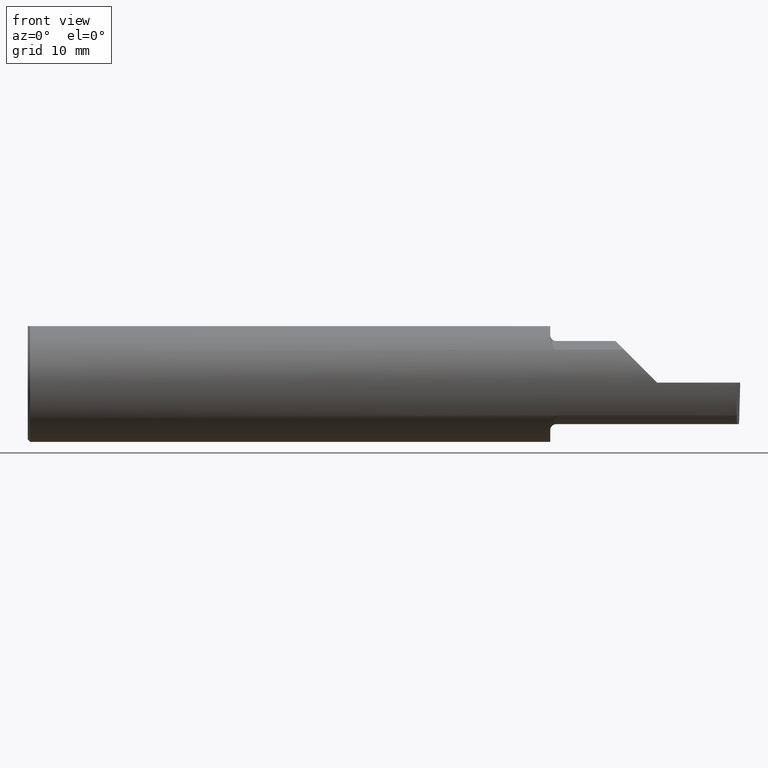
[diagram: clean part render]
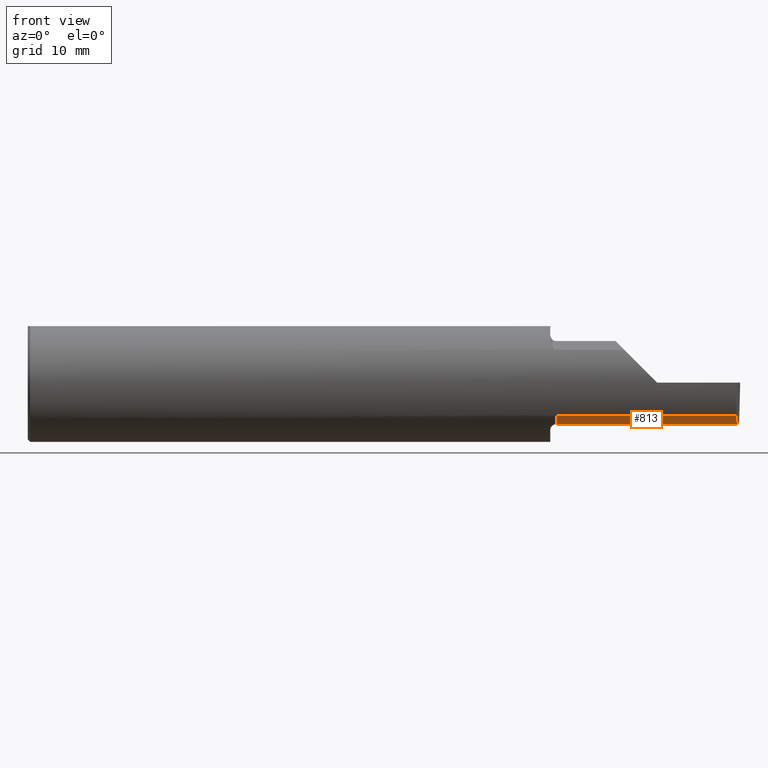
[diagram: same view with one face highlighted and labeled with its STEP entity id]
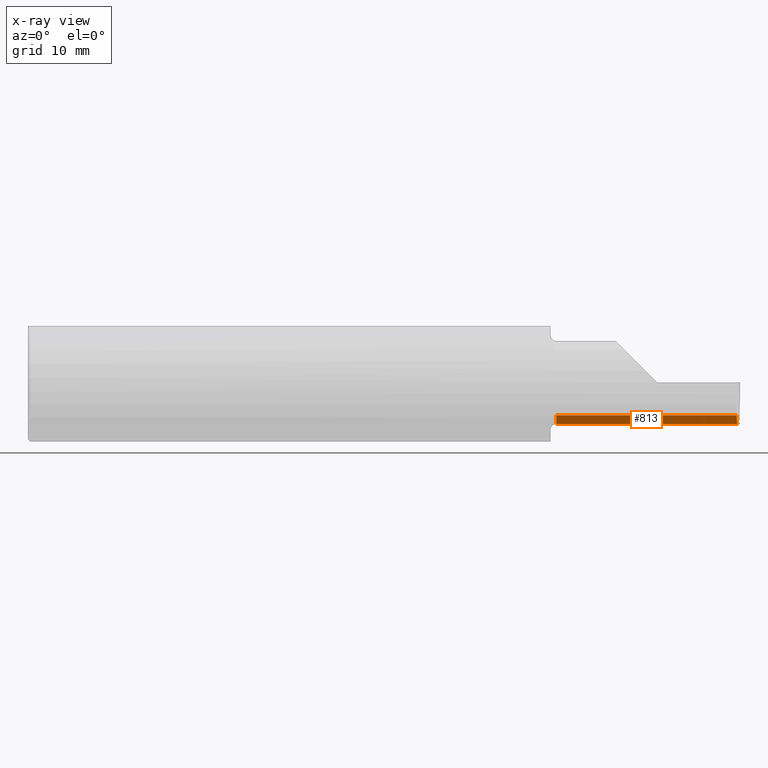
[diagram: x-ray of the same camera — body ghosted, the highlighted face saturated]
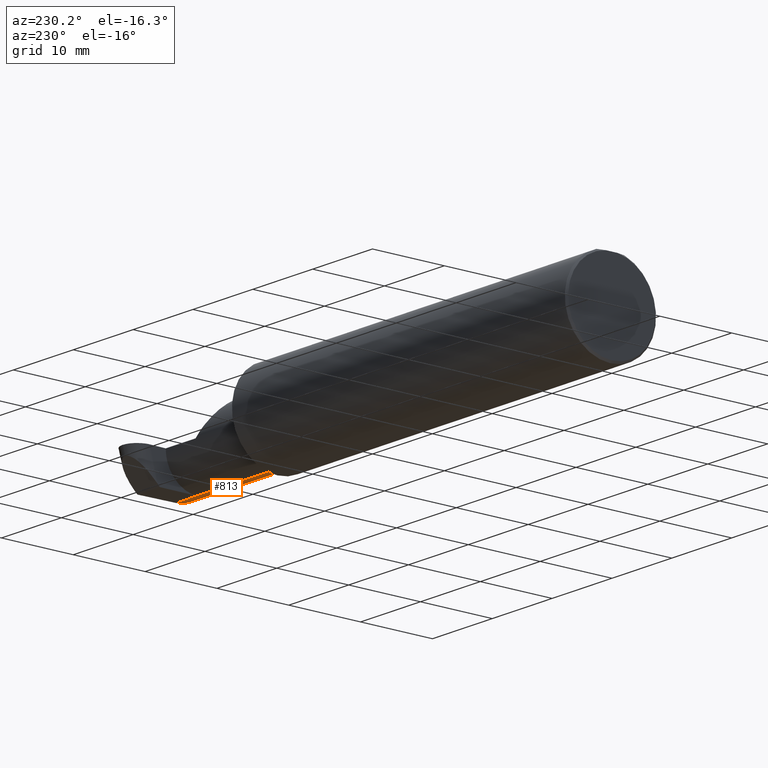
[diagram: same view with one face highlighted and labeled with its STEP entity id]
A machine part, front view. The second image highlights one B-rep face of the part: STEP entity #813.
The next image is the same camera in x-ray: the body ghosted, the highlighted face saturated — about 0% of this face is hidden behind the body in this view.
A second angle (auxiliary view) of the same face is appended — the face is thin or edge-on in the first view.
In plain terms, the highlighted cylindrical surface (partial cylindrical patch) has radius 4.445 mm, axis along (-1, -0, -0).
Its self-contained STEP definition (entity closure, byte-faithful):
#35 = CARTESIAN_POINT ( 'NONE',  ( 2.200000000000000178, -0.1008499999999999952, -0.1750000000000000444 ) ) ;
#38 = CARTESIAN_POINT ( 'NONE',  ( 2.987584882537838826, -0.1008500000000001340, -0.1750000000000000722 ) ) ;
#50 = DIRECTION ( 'NONE',  ( -1.000000000000000000, -0.000000000000000000, -0.000000000000000000 ) ) ;
#61 = CARTESIAN_POINT ( 'NONE',  ( 2.985143277913549831, -0.1771157075472509501, -0.1623092683844331308 ) ) ;
#76 = AXIS2_PLACEMENT_3D ( 'NONE', #230, #50, #364 ) ;
#108 = EDGE_CURVE ( 'NONE', #633, #757, #360, .T. ) ;
#115 = DIRECTION ( 'NONE',  ( -1.000000000000000000, -0.000000000000000000, -0.000000000000000000 ) ) ;
#140 = CYLINDRICAL_SURFACE ( 'NONE', #178, 0.1750000000000000444 ) ;
#150 =( BOUNDED_CURVE ( )  B_SPLINE_CURVE ( 3, ( #373, #61, #759, #453 ),
 .UNSPECIFIED., .F., .F. ) 
 B_SPLINE_CURVE_WITH_KNOTS ( ( 4, 4 ),
 ( 0.4474640105399709245, 1.107026853503876085 ),
 .UNSPECIFIED. ) 
 CURVE ( )  GEOMETRIC_REPRESENTATION_ITEM ( )  RATIONAL_B_SPLINE_CURVE ( ( 1.000000000000000000, 0.9640754331822831702, 0.9640754331822831702, 1.000000000000000000 ) ) 
 REPRESENTATION_ITEM ( '' )  );
#152 = VECTOR ( 'NONE', #115, 39.37007874015748143 ) ;
#154 = DIRECTION ( 'NONE',  ( -1.000000000000000000, -0.000000000000000000, -0.000000000000000000 ) ) ;
#160 = VECTOR ( 'NONE', #331, 39.37007874015748143 ) ;
#170 = CARTESIAN_POINT ( 'NONE',  ( 3.402190948718818664, -0.1008500000000001340, -0.1750000000000000722 ) ) ;
#178 = AXIS2_PLACEMENT_3D ( 'NONE', #395, #154, #783 ) ;
#185 = LINE ( 'NONE', #569, #160 ) ;
#203 = ORIENTED_EDGE ( 'NONE', *, *, #278, .T. ) ;
#230 = CARTESIAN_POINT ( 'NONE',  ( 2.225000000000000089, -0.1008500000000000091, 0.000000000000000000 ) ) ;
#243 = CIRCLE ( 'NONE', #76, 0.1750000000000000167 ) ;
#257 = EDGE_LOOP ( 'NONE', ( #743, #687, #640, #203, #784 ) ) ;
#267 = VERTEX_POINT ( 'NONE', #384 ) ;
#278 = EDGE_CURVE ( 'NONE', #753, #267, #185, .T. ) ;
#303 = EDGE_CURVE ( 'NONE', #753, #621, #150, .T. ) ;
#319 = CARTESIAN_POINT ( 'NONE',  ( 2.849201506090199842, -0.1008500000000000368, -0.1750000000000000444 ) ) ;
#331 = DIRECTION ( 'NONE',  ( -1.000000000000000000, -0.000000000000000000, -0.000000000000000000 ) ) ;
#355 = DIRECTION ( 'NONE',  ( -1.000000000000000000, -0.000000000000000000, -0.000000000000000000 ) ) ;
#360 = LINE ( 'NONE', #35, #481 ) ;
#364 = DIRECTION ( 'NONE',  ( 0.000000000000000000, 0.000000000000000000, 1.000000000000000000 ) ) ;
#373 = CARTESIAN_POINT ( 'NONE',  ( 2.984481223124517690, -0.2080850024789289987, -0.1382955322609668025 ) ) ;
#384 = CARTESIAN_POINT ( 'NONE',  ( 2.225000000000000089, -0.2080850024789288599, -0.1382955322609668025 ) ) ;
#390 = CARTESIAN_POINT ( 'NONE',  ( 2.984481223124517690, -0.2080850024789289987, -0.1382955322609668025 ) ) ;
#395 = CARTESIAN_POINT ( 'NONE',  ( 2.200000000000000178, -0.1008500000000000091, 0.000000000000000000 ) ) ;
#420 = LINE ( 'NONE', #170, #152 ) ;
#444 = EDGE_CURVE ( 'NONE', #621, #633, #420, .T. ) ;
#453 = CARTESIAN_POINT ( 'NONE',  ( 2.987584882537838826, -0.1008500000000001340, -0.1750000000000000722 ) ) ;
#481 = VECTOR ( 'NONE', #355, 39.37007874015748143 ) ;
#530 = FACE_OUTER_BOUND ( 'NONE', #257, .T. ) ;
#538 = EDGE_CURVE ( 'NONE', #757, #267, #243, .T. ) ;
#569 = CARTESIAN_POINT ( 'NONE',  ( 2.533868310000000346, -0.2080850024789289987, -0.1382955322609668025 ) ) ;
#621 = VERTEX_POINT ( 'NONE', #38 ) ;
#633 = VERTEX_POINT ( 'NONE', #319 ) ;
#640 = ORIENTED_EDGE ( 'NONE', *, *, #303, .F. ) ;
#687 = ORIENTED_EDGE ( 'NONE', *, *, #444, .F. ) ;
#717 = CARTESIAN_POINT ( 'NONE',  ( 2.225000000000000089, -0.1008500000000000091, -0.1750000000000000167 ) ) ;
#743 = ORIENTED_EDGE ( 'NONE', *, *, #108, .F. ) ;
#753 = VERTEX_POINT ( 'NONE', #390 ) ;
#757 = VERTEX_POINT ( 'NONE', #717 ) ;
#759 = CARTESIAN_POINT ( 'NONE',  ( 2.986216381845219203, -0.1400387324517231580, -0.1750000000000000167 ) ) ;
#783 = DIRECTION ( 'NONE',  ( 0.000000000000000000, 0.000000000000000000, 1.000000000000000000 ) ) ;
#784 = ORIENTED_EDGE ( 'NONE', *, *, #538, .F. ) ;
#813 = ADVANCED_FACE ( 'NONE', ( #530 ), #140, .T. ) ;